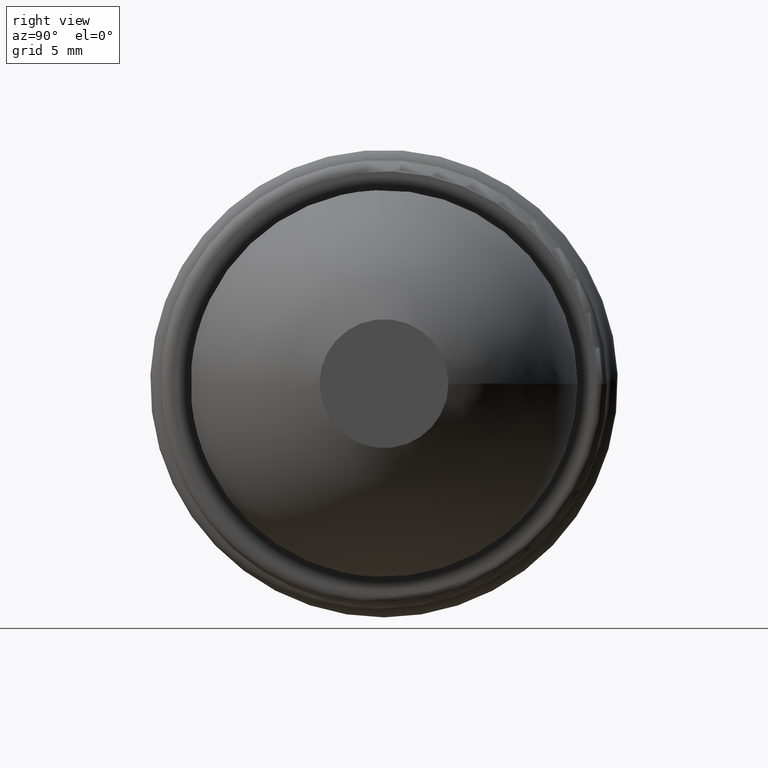
[diagram: clean part render]
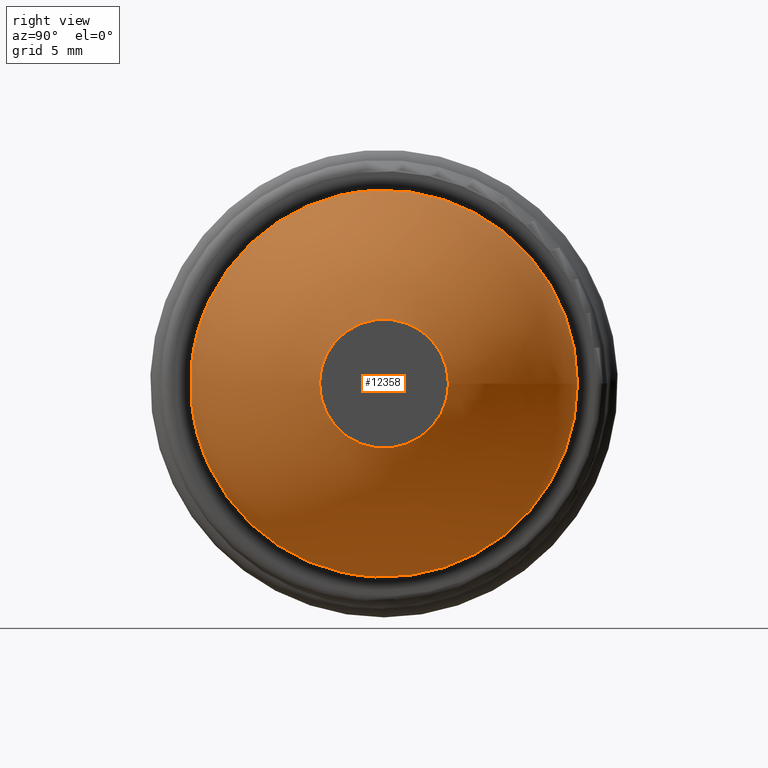
[diagram: same view with one face highlighted and labeled with its STEP entity id]
A machine part, right view. The second image highlights one B-rep face of the part: STEP entity #12358.
In plain terms, the highlighted face is a freeform B-spline surface patch.
Its self-contained STEP definition (entity closure, byte-faithful):
#12294=CARTESIAN_POINT('',(-14.461170513570101,15.867980793193080,0.0));
#12295=VERTEX_POINT('',#12294);
#12296=CARTESIAN_POINT('',(-14.461170513570101,3.867980793193076,0.0));
#12297=DIRECTION('',(1.0,0.0,0.0));
#12298=DIRECTION('',(0.0,1.0,0.0));
#12299=AXIS2_PLACEMENT_3D('',#12296,#12297,#12298);
#12300=CIRCLE('',#12299,12.000000000000004);
#12301=EDGE_CURVE('',#12295,#12295,#12300,.T.);
#12309=CARTESIAN_POINT('',(-14.461170513570529,3.867980793193077,12.000000000000005));
#12310=CARTESIAN_POINT('',(-5.928561817917728,3.867980793193077,12.000000000000306));
#12311=CARTESIAN_POINT('',(-2.961170513569952,3.867980793193076,3.999999999999615));
#12312=CARTESIAN_POINT('',(-14.461170513570529,15.867980793193079,12.0));
#12313=CARTESIAN_POINT('',(-5.928561817917728,15.867980793193381,12.000000000000300));
#12314=CARTESIAN_POINT('',(-2.961170513569952,7.867980793192690,3.999999999999615));
#12315=CARTESIAN_POINT('',(-14.461170513570529,15.867980793193080,-1.332268E-015));
#12316=CARTESIAN_POINT('',(-5.928561817917727,15.867980793193382,-1.332268E-015));
#12317=CARTESIAN_POINT('',(-2.961170513569952,7.867980793192691,-4.440892E-016));
#12318=CARTESIAN_POINT('',(-14.461170513570529,15.867980793193075,-12.000000000000004));
#12319=CARTESIAN_POINT('',(-5.928561817917726,15.867980793193377,-12.000000000000304));
#12320=CARTESIAN_POINT('',(-2.961170513569952,7.867980793192690,-3.999999999999615));
#12321=CARTESIAN_POINT('',(-14.461170513570529,3.867980793193075,-12.000000000000005));
#12322=CARTESIAN_POINT('',(-5.928561817917726,3.867980793193075,-12.000000000000306));
#12323=CARTESIAN_POINT('',(-2.961170513569952,3.867980793193075,-3.999999999999615));
#12324=CARTESIAN_POINT('',(-14.461170513570529,-8.132019206806929,-12.0));
#12325=CARTESIAN_POINT('',(-5.928561817917726,-8.132019206807227,-12.000000000000300));
#12326=CARTESIAN_POINT('',(-2.961170513569952,-0.132019206806539,-3.999999999999615));
#12327=CARTESIAN_POINT('',(-14.461170513570529,-8.132019206806930,1.332268E-015));
#12328=CARTESIAN_POINT('',(-5.928561817917727,-8.132019206807229,1.332268E-015));
#12329=CARTESIAN_POINT('',(-2.961170513569952,-0.132019206806540,4.440892E-016));
#12330=CARTESIAN_POINT('',(-14.461170513570529,-8.132019206806925,12.000000000000004));
#12331=CARTESIAN_POINT('',(-5.928561817917728,-8.132019206807224,12.000000000000304));
#12332=CARTESIAN_POINT('',(-2.961170513569952,-0.132019206806538,3.999999999999615));
#12333=CARTESIAN_POINT('',(-14.461170513570529,3.867980793193077,12.000000000000005));
#12334=CARTESIAN_POINT('',(-5.928561817917728,3.867980793193077,12.000000000000306));
#12335=CARTESIAN_POINT('',(-2.961170513569952,3.867980793193076,3.999999999999615));
#12343=(BOUNDED_SURFACE()B_SPLINE_SURFACE(2,2,((#12309,#12312,#12315,#12318,#12321,#12324,#12327,#12330,#12333),(#12310,#12313,#12316,#12319,#12322,#12325,#12328,#12331,#12334),(#12311,#12314,#12317,#12320,#12323,#12326,#12329,#12332,#12335)),.UNSPECIFIED.,.F.,.T.,.U.)B_SPLINE_SURFACE_WITH_KNOTS((3,3),(3,2,2,2,3),(-3.490258E-014,1.215603992227955),(0.0,1.570796326794897,3.141592653589793,4.712388980384690,6.283185307179586),.UNSPECIFIED.)GEOMETRIC_REPRESENTATION_ITEM()RATIONAL_B_SPLINE_SURFACE(((1.0,0.707106781186548,1.0,0.707106781186548,1.0,0.707106781186548,1.0,0.707106781186548,1.0),(0.820905201785467,0.580467634893815,0.820905201785467,0.580467634893815,0.820905201785467,0.580467634893815,0.820905201785467,0.580467634893815,0.820905201785467),(1.0,0.707106781186548,1.0,0.707106781186548,1.0,0.707106781186548,1.0,0.707106781186548,1.0)))REPRESENTATION_ITEM('')SURFACE());
#12344=CARTESIAN_POINT('',(-2.961170513570095,7.867980793193079,0.0));
#12345=VERTEX_POINT('',#12344);
#12346=CARTESIAN_POINT('',(-2.961170513570095,3.867980793193076,0.0));
#12347=DIRECTION('',(1.0,0.0,0.0));
#12348=DIRECTION('',(0.0,1.0,0.0));
#12349=AXIS2_PLACEMENT_3D('',#12346,#12347,#12348);
#12350=CIRCLE('',#12349,4.000000000000003);
#12351=EDGE_CURVE('',#12345,#12345,#12350,.T.);
#12352=ORIENTED_EDGE('',*,*,#12351,.F.);
#12353=EDGE_LOOP('',(#12352));
#12354=FACE_OUTER_BOUND('',#12353,.T.);
#12355=ORIENTED_EDGE('',*,*,#12301,.T.);
#12356=EDGE_LOOP('',(#12355));
#12357=FACE_BOUND('',#12356,.T.);
#12358=ADVANCED_FACE('',(#12354,#12357),#12343,.T.);